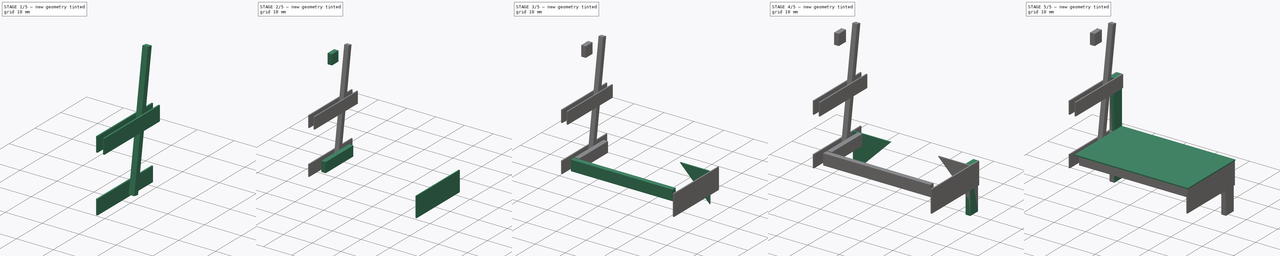
[diagram: build sequence overview — one tinted view per stage of 5, left to right]
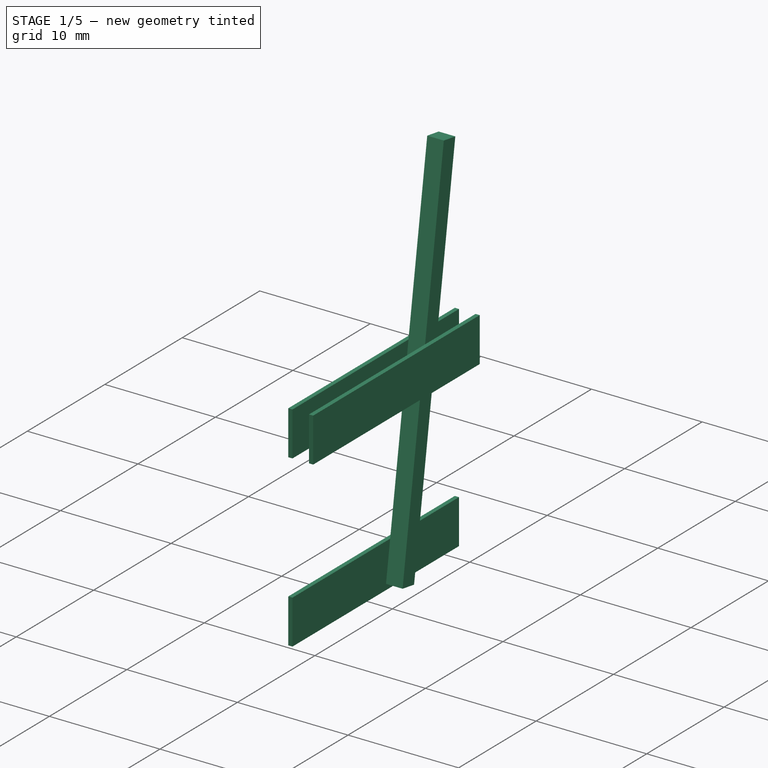
[diagram: stage 1 of 5 — iso view after this stage's code; geometry added in this stage tinted green]
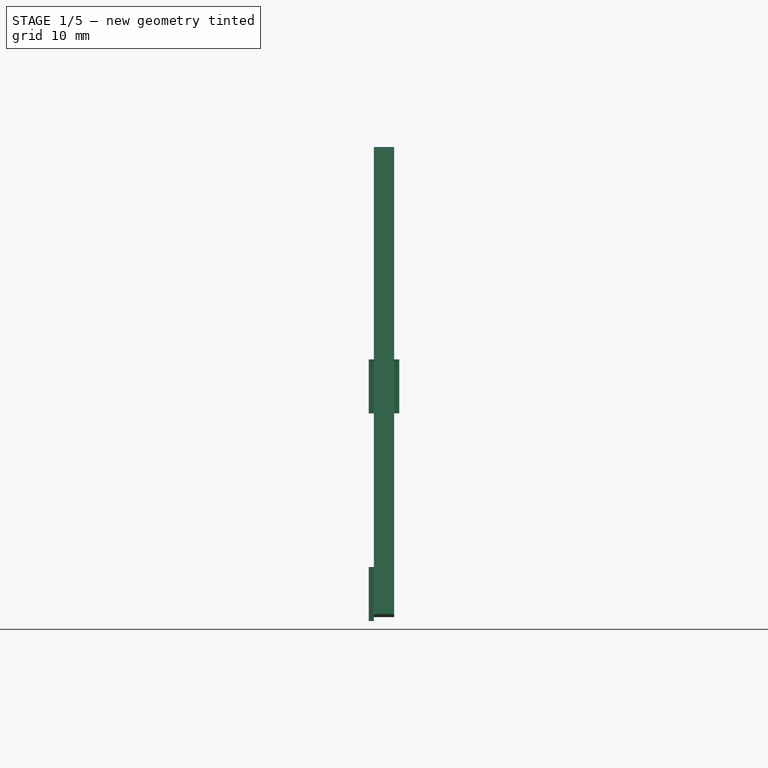
[diagram: stage 1 of 5 — front view after this stage's code; geometry added in this stage tinted green]
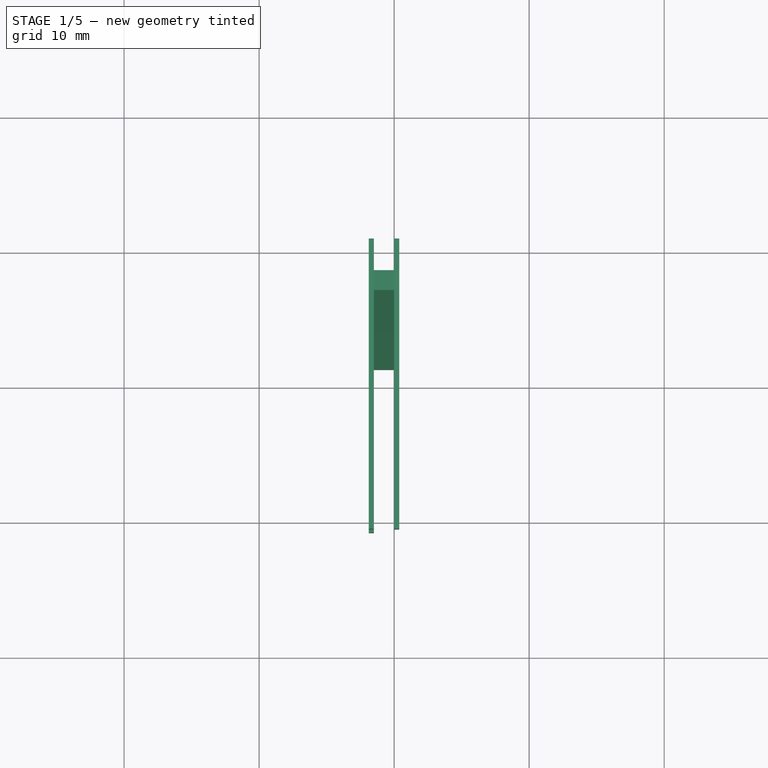
[diagram: stage 1 of 5 — top view after this stage's code; geometry added in this stage tinted green]
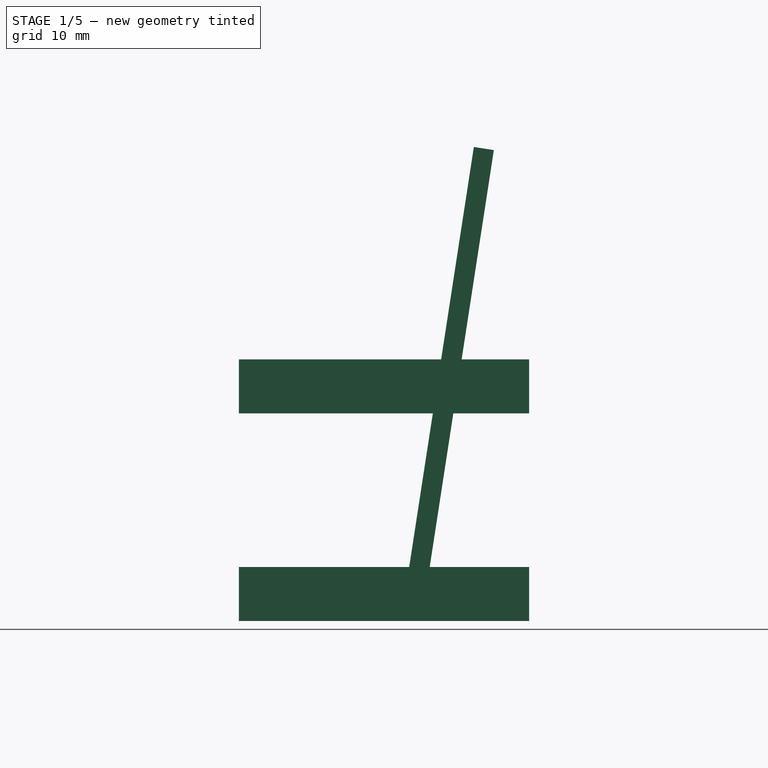
[diagram: stage 1 of 5 — right view after this stage's code; geometry added in this stage tinted green]
FCSTD DOCUMENT  (FreeCAD 0.14R3327 (Git))
Label: GoatLev
License: CC-BY 3.0
LicenseURL: http://creativecommons.org/licenses/by/3.0/
objects: Sketcher::SketchObject×15, Part::Extrusion×15, Part::Mirroring×5
note: 35 computed .brp shape members not serialized (recipe doc carries the construction recipe); baked Part::Feature solids carry a one-line shape summary decoded from their .brp

FEATURE [Sketcher::SketchObject] Sketch011
  Placement = pos=(-1.5,0,0) rot=(0.57735,0.57735,0.57735;2.0944rad)
  sketch-geometry (4):
    g0: LineSegment StartX=-10.75 StartY=14.625 StartZ=0 EndX=10.75 EndY=14.625 EndZ=0
    g1: LineSegment StartX=10.75 StartY=14.625 StartZ=0 EndX=10.75 EndY=10.625 EndZ=0
    g2: LineSegment StartX=10.75 StartY=10.625 StartZ=0 EndX=-10.75 EndY=10.625 EndZ=0
    g3: LineSegment StartX=-10.75 StartY=10.625 StartZ=0 EndX=-10.75 EndY=14.625 EndZ=0
  constraints (12):
    c: Coincident(g0,g1)
    c: Coincident(g1,g2)
    c: Coincident(g2,g3)
    c: Coincident(g3,g0)
    c: Horizontal(g0)
    c: Horizontal(g2)
    c: Vertical(g1)
    c: Vertical(g3)
    c: Symmetric(g0,g0,g-2)
    c: DistanceY(g-1,g0) = 14.625
    c: DistanceY(g3) = 4
    c: DistanceX(g0) = 21.5
FEATURE [Part::Extrusion] Extrude012
  Base = -> Sketch011
  Dir = (-0.375,0,0)
  Solid = true
FEATURE [Sketcher::SketchObject] Sketch012
  Placement = pos=(-1.5,0,0) rot=(0.57735,0.57735,0.57735;2.0944rad)
  sketch-geometry (4):
    g0: LineSegment StartX=-10.75 StartY=30 StartZ=0 EndX=10.75 EndY=30 EndZ=0
    g1: LineSegment StartX=10.75 StartY=30 StartZ=0 EndX=10.75 EndY=26 EndZ=0
    g2: LineSegment StartX=10.75 StartY=26 StartZ=0 EndX=-10.75 EndY=26 EndZ=0
    g3: LineSegment StartX=-10.75 StartY=26 StartZ=0 EndX=-10.75 EndY=30 EndZ=0
  constraints (12):
    c: Coincident(g0,g1)
    c: Coincident(g1,g2)
    c: Coincident(g2,g3)
    c: Coincident(g3,g0)
    c: Horizontal(g0)
    c: Horizontal(g2)
    c: Vertical(g1)
    c: Vertical(g3)
    c: DistanceX(g0,g0) = -21.5
    c: Symmetric(g0,g0,g-2)
    c: DistanceY(g-1,g0) = 30
    c: Distance(g1) = 4
FEATURE [Part::Extrusion] Extrude013
  Base = -> Sketch012
  Dir = (-0.375,0,0)
  Solid = true
FEATURE [Sketcher::SketchObject] Sketch013
  Placement = pos=(0,0,0) rot=(0.57735,0.57735,0.57735;2.0944rad)
  sketch-geometry (4):
    g0: LineSegment StartX=-10.75 StartY=30 StartZ=0 EndX=10.75 EndY=30 EndZ=0
    g1: LineSegment StartX=10.75 StartY=30 StartZ=0 EndX=10.75 EndY=26 EndZ=0
    g2: LineSegment StartX=10.75 StartY=26 StartZ=0 EndX=-10.75 EndY=26 EndZ=0
    g3: LineSegment StartX=-10.75 StartY=26 StartZ=0 EndX=-10.75 EndY=30 EndZ=0
  constraints (12):
    c: Coincident(g0,g1)
    c: Coincident(g1,g2)
    c: Coincident(g2,g3)
    c: Coincident(g3,g0)
    c: Horizontal(g0)
    c: Horizontal(g2)
    c: Vertical(g1)
    c: Vertical(g3)
    c: Symmetric(g0,g0,g-2)
    c: DistanceY(g-1,g0) = 30
    c: DistanceX(g0) = 21.5
    c: DistanceY(g1) = -4
FEATURE [Part::Extrusion] Extrude014
  Base = -> Sketch013
  Dir = (0.375,0,0)
  Solid = true
FEATURE [Sketcher::SketchObject] Sketch014
  Placement = pos=(0,0,0) rot=(0.57735,-0.57735,-0.57735;2.0944rad)
  sketch-geometry (8):
    g0: LineSegment StartX=-2.81207 StartY=10.9092 StartZ=0 EndX=-1.32952 EndY=11.1373 EndZ=0
    g1: LineSegment StartX=-1.32952 StartY=11.1373 StartZ=0 EndX=-6.65309 EndY=45.7301 EndZ=0
    g2: LineSegment StartX=-6.65309 StartY=45.7301 StartZ=0 EndX=-8.13563 EndY=45.502 EndZ=0
    g3: LineSegment StartX=-8.13563 StartY=45.502 StartZ=0 EndX=-2.81207 EndY=10.9092 EndZ=0
    g4: GeomPoint [constr] X=-2.375 Y=13 Z=0
    g5: LineSegment [constr] StartX=-2.375 StartY=13 StartZ=0 EndX=-2.81207 EndY=10.9092 EndZ=0
    g6: LineSegment [constr] StartX=-2.375 StartY=13 StartZ=0 EndX=-1.32952 EndY=11.1373 EndZ=0
    g7: GeomPoint [constr] X=-5.75 Y=30 Z=0
  constraints (20):
    c: Coincident(g0,g1)
    c: Coincident(g1,g2)
    c: Coincident(g2,g3)
    c: Coincident(g3,g0)
    c: Perpendicular(g1,g2)
    c: Perpendicular(g3,g2)
    c: Perpendicular(g3,g0)
    c: Coincident(g5,g4)
    c: Coincident(g5,g0)
    c: Coincident(g6,g4)
    c: Coincident(g6,g0)
    c: Equal(g5,g6)
    c: Distance(g4,g0) = 2
    c: DistanceX(g-1,g4) = -2.375
    c: DistanceY(g-1,g4) = 13
    c: Distance(g3) = 35
    c: Distance(g2) = 1.5
    c: PointOnObject(g7,g3)
    c: DistanceX(g-1,g7) = -5.75
    c: DistanceY(g-1,g7) = 30
FEATURE [Part::Extrusion] Extrude015
  Base = -> Sketch014
  Dir = (-1.5,0,0)
  Solid = true
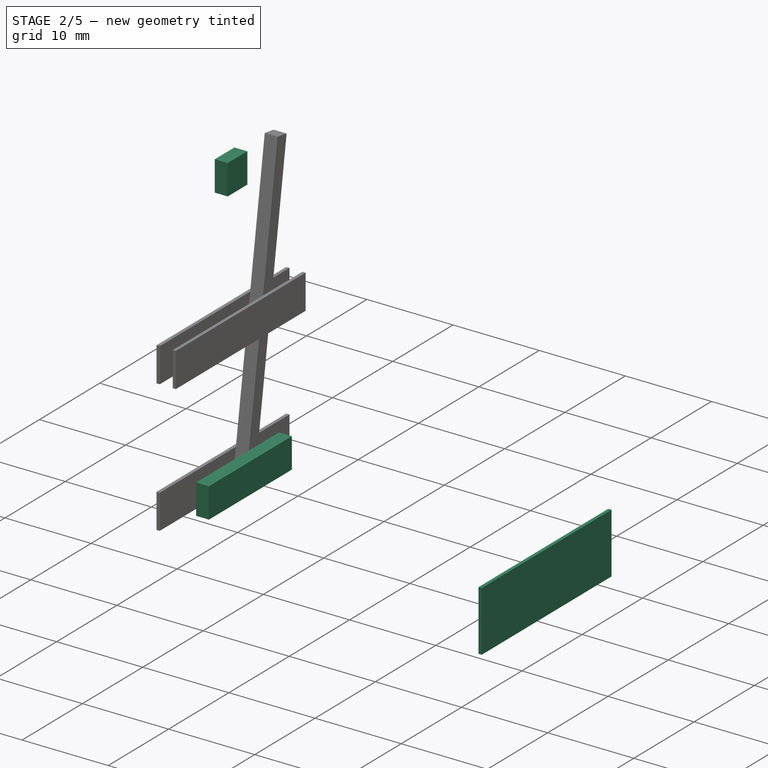
[diagram: stage 2 of 5 — iso view after this stage's code; geometry added in this stage tinted green]
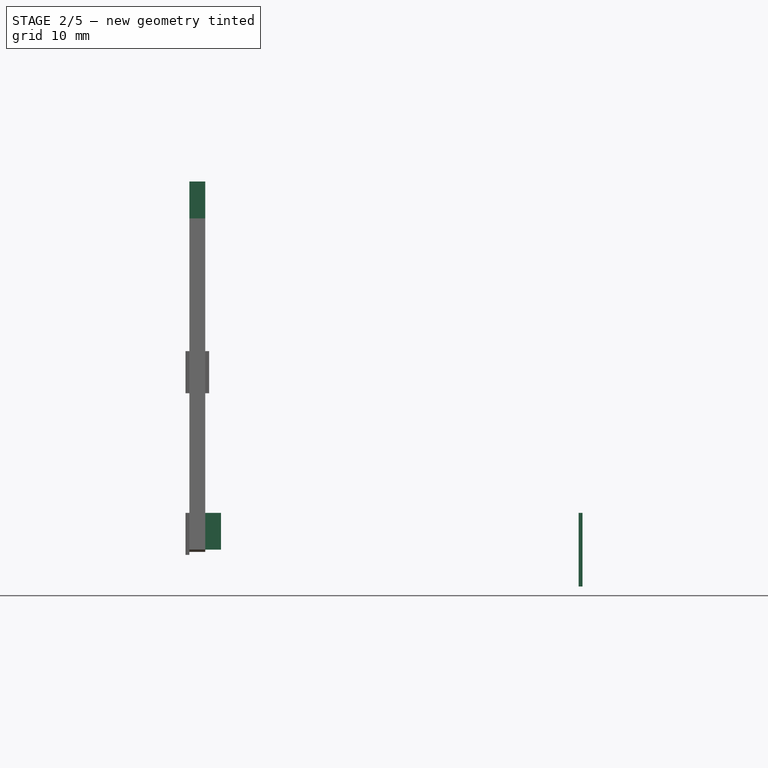
[diagram: stage 2 of 5 — front view after this stage's code; geometry added in this stage tinted green]
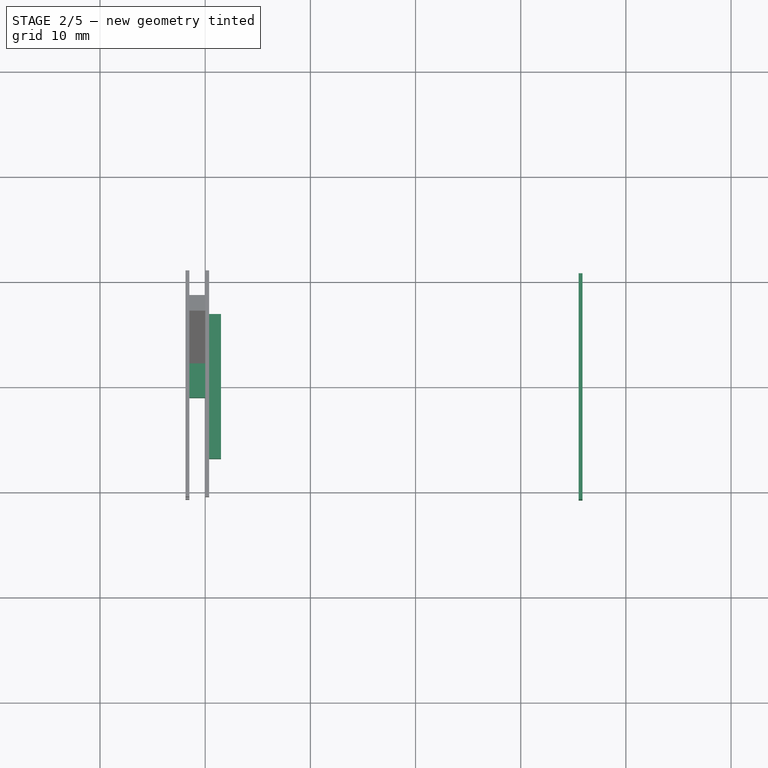
[diagram: stage 2 of 5 — top view after this stage's code; geometry added in this stage tinted green]
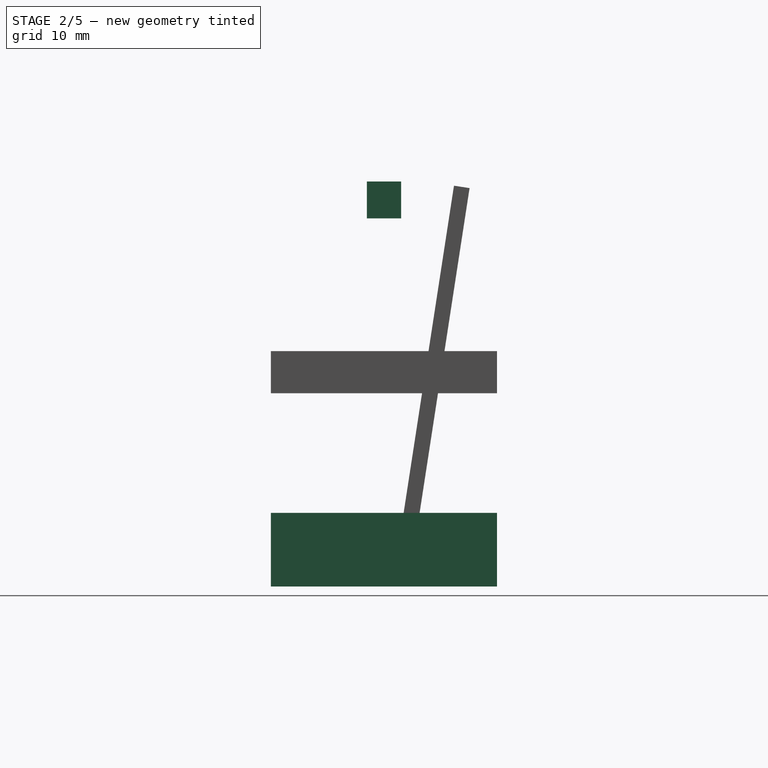
[diagram: stage 2 of 5 — right view after this stage's code; geometry added in this stage tinted green]
FEATURE [Sketcher::SketchObject] Sketch007
  Placement = pos=(0,0,0) rot=(0.57735,0.57735,0.57735;2.0944rad)
  sketch-geometry (4):
    g0: LineSegment StartX=-6.875 StartY=14.625 StartZ=0 EndX=6.875 EndY=14.625 EndZ=0
    g1: LineSegment StartX=6.875 StartY=14.625 StartZ=0 EndX=6.875 EndY=11.125 EndZ=0
    g2: LineSegment StartX=6.875 StartY=11.125 StartZ=0 EndX=-6.875 EndY=11.125 EndZ=0
    g3: LineSegment StartX=-6.875 StartY=11.125 StartZ=0 EndX=-6.875 EndY=14.625 EndZ=0
  constraints (12):
    c: Coincident(g0,g1)
    c: Coincident(g1,g2)
    c: Coincident(g2,g3)
    c: Coincident(g3,g0)
    c: Horizontal(g0)
    c: Horizontal(g2)
    c: Vertical(g1)
    c: Vertical(g3)
    c: Symmetric(g2,g1,g-2)
    c: DistanceY(g-1,g0) = 14.625
    c: DistanceY(g3) = 3.5
    c: DistanceX(g2) = -13.75
FEATURE [Part::Extrusion] Extrude008
  Base = -> Sketch007
  Dir = (1.5,0,0)
  Solid = true
FEATURE [Sketcher::SketchObject] Sketch008
  Placement = pos=(35.5,0,0) rot=(0.57735,0.57735,0.57735;2.0944rad)
  sketch-geometry (4):
    g0: LineSegment StartX=-10.75 StartY=14.625 StartZ=0 EndX=10.75 EndY=14.625 EndZ=0
    g1: LineSegment StartX=10.75 StartY=14.625 StartZ=0 EndX=10.75 EndY=7.625 EndZ=0
    g2: LineSegment StartX=10.75 StartY=7.625 StartZ=0 EndX=-10.75 EndY=7.625 EndZ=0
    g3: LineSegment StartX=-10.75 StartY=7.625 StartZ=0 EndX=-10.75 EndY=14.625 EndZ=0
  constraints (12):
    c: Coincident(g0,g1)
    c: Coincident(g1,g2)
    c: Coincident(g2,g3)
    c: Coincident(g3,g0)
    c: Horizontal(g0)
    c: Horizontal(g2)
    c: Vertical(g1)
    c: Vertical(g3)
    c: Symmetric(g1,g2,g-2)
    c: DistanceX(g0) = 21.5
    c: DistanceY(g3) = 7
    c: DistanceY(g-1,g0) = 14.625
FEATURE [Part::Extrusion] Extrude009
  Base = -> Sketch008
  Dir = (0.375,0,0)
  Solid = true
FEATURE [Sketcher::SketchObject] Sketch009
  Placement = pos=(0,0,0) rot=(0.57735,0.57735,0.57735;2.0944rad)
  sketch-geometry (4):
    g0: LineSegment StartX=-1.625 StartY=46.125 StartZ=0 EndX=-3.125 EndY=46.125 EndZ=0
    g1: LineSegment StartX=-3.125 StartY=46.125 StartZ=0 EndX=-3.125 EndY=11.125 EndZ=0
    g2: LineSegment StartX=-3.125 StartY=11.125 StartZ=0 EndX=-1.625 EndY=11.125 EndZ=0
    g3: LineSegment StartX=-1.625 StartY=11.125 StartZ=0 EndX=-1.625 EndY=46.125 EndZ=0
  constraints (12):
    c: Coincident(g0,g1)
    c: Coincident(g1,g2)
    c: Coincident(g2,g3)
    c: Coincident(g3,g0)
    c: Horizontal(g0)
    c: Horizontal(g2)
    c: Vertical(g1)
    c: Vertical(g3)
    c: DistanceX(g0) = -1.5
    c: DistanceY(g3) = 35
    c: DistanceY(g-1,g1) = 11.125
    c: DistanceX(g-1,g2) = -1.625
FEATURE [Part::Extrusion] Extrude010
  Base = -> Sketch009
  Dir = (-1.5,0,0)
  Solid = true
FEATURE [Sketcher::SketchObject] Sketch010
  ExternalGeometry = -> [Extrude010]
  Placement = pos=(0,-1.625,0) rot=(0,0.707107,0.707107;3.14159rad)
  Support = -> Extrude010 [Face4]
  sketch-geometry (4):
    g0: LineSegment StartX=1.5 StartY=46.125 StartZ=0 EndX=0 EndY=46.125 EndZ=0
    g1: LineSegment StartX=0 StartY=46.125 StartZ=0 EndX=0 EndY=42.625 EndZ=0
    g2: LineSegment StartX=0 StartY=42.625 StartZ=0 EndX=1.5 EndY=42.625 EndZ=0
    g3: LineSegment StartX=1.5 StartY=42.625 StartZ=0 EndX=1.5 EndY=46.125 EndZ=0
  constraints (11):
    c: Coincident(g0,g1)
    c: Coincident(g1,g2)
    c: Coincident(g2,g3)
    c: Coincident(g3,g0)
    c: Horizontal(g0)
    c: Horizontal(g2)
    c: Vertical(g1)
    c: Vertical(g3)
    c: Coincident(g0,g-3)
    c: Coincident(g0,g-3)
    c: DistanceY(g1) = -3.5
FEATURE [Part::Extrusion] Extrude011
  Base = -> Sketch010
  Dir = (0,3.25,0)
  Solid = true
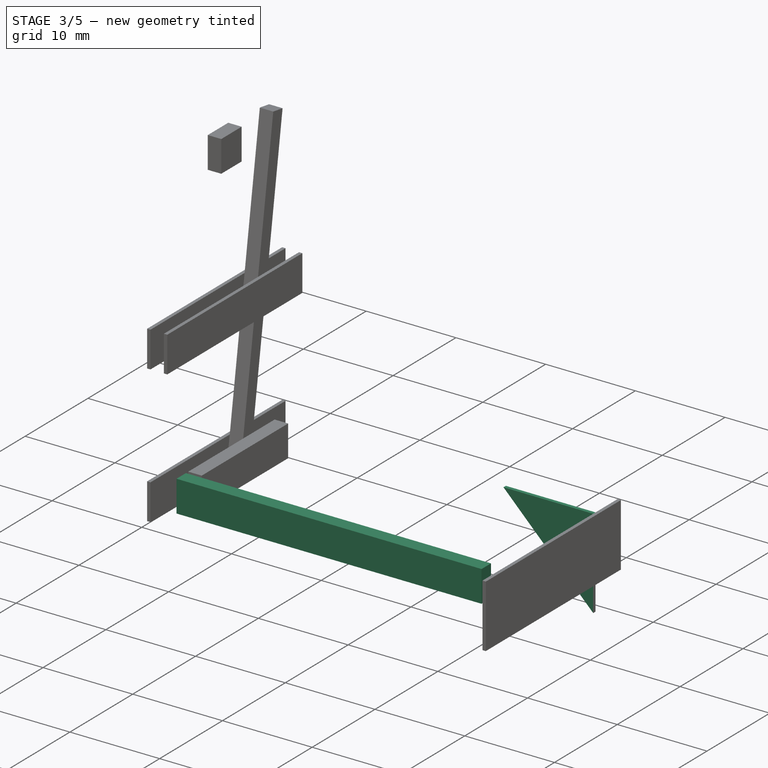
[diagram: stage 3 of 5 — iso view after this stage's code; geometry added in this stage tinted green]
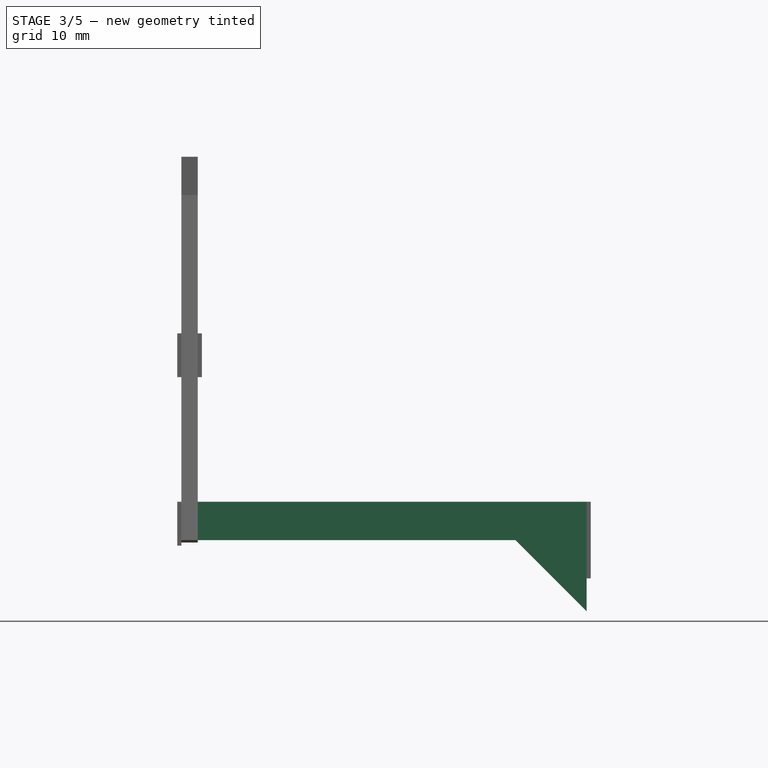
[diagram: stage 3 of 5 — front view after this stage's code; geometry added in this stage tinted green]
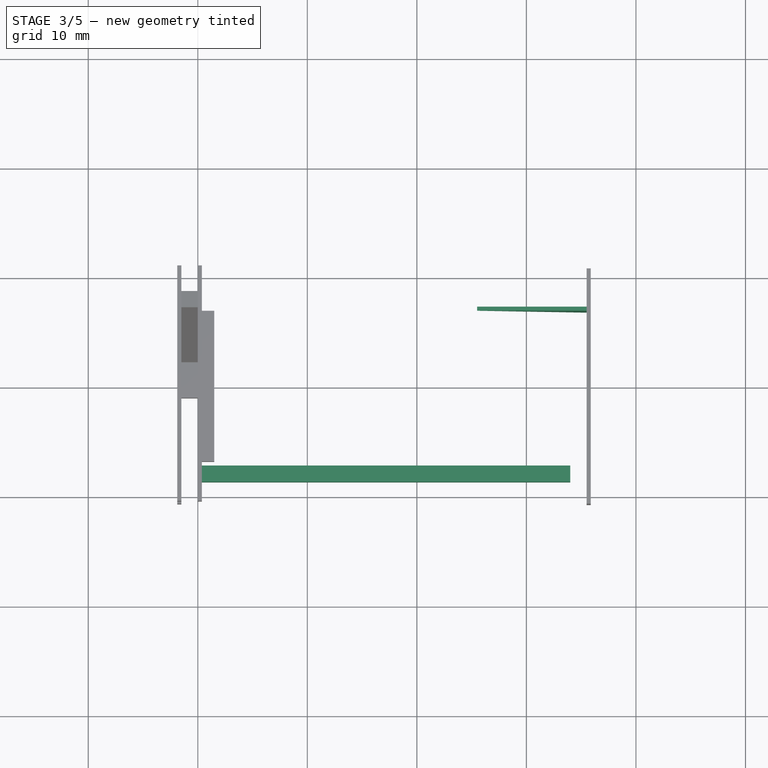
[diagram: stage 3 of 5 — top view after this stage's code; geometry added in this stage tinted green]
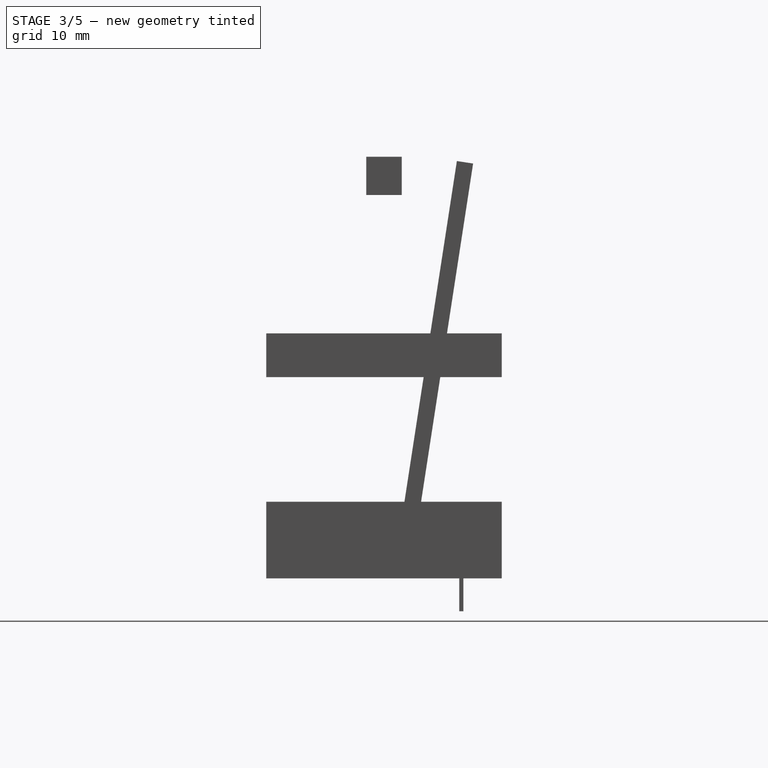
[diagram: stage 3 of 5 — right view after this stage's code; geometry added in this stage tinted green]
FEATURE [Sketcher::SketchObject] Sketch001
  Placement = pos=(0,0,0) rot=(0.57735,0.57735,0.57735;2.0944rad)
  sketch-geometry (4):
    g0: LineSegment StartX=-8.75 StartY=14.625 StartZ=0 EndX=-7.25 EndY=14.625 EndZ=0
    g1: LineSegment StartX=-7.25 StartY=14.625 StartZ=0 EndX=-7.25 EndY=11.125 EndZ=0
    g2: LineSegment StartX=-7.25 StartY=11.125 StartZ=0 EndX=-8.75 EndY=11.125 EndZ=0
    g3: LineSegment StartX=-8.75 StartY=11.125 StartZ=0 EndX=-8.75 EndY=14.625 EndZ=0
  constraints (12):
    c: Coincident(g0,g1)
    c: Coincident(g1,g2)
    c: Coincident(g2,g3)
    c: Coincident(g3,g0)
    c: Horizontal(g0)
    c: Horizontal(g2)
    c: Vertical(g1)
    c: Vertical(g3)
    c: DistanceX(g-1,g1) = -7.25
    c: DistanceX(g2) = -1.5
    c: DistanceY(g3) = 3.5
    c: DistanceY(g-1,g0) = 14.625
FEATURE [Part::Extrusion] Extrude
  Base = -> Sketch001
  Dir = (34,0,0)
  Solid = true
FEATURE [Sketcher::SketchObject] Sketch006
  Placement = pos=(0,-7.25,0) rot=(0,0.707107,0.707107;3.14159rad)
  Support = -> Extrude [Face2]
  sketch-geometry (3):
    g0: LineSegment StartX=-25.5 StartY=14.625 StartZ=0 EndX=-35.5 EndY=14.625 EndZ=0
    g1: LineSegment StartX=-35.5 StartY=14.625 StartZ=0 EndX=-35.5 EndY=4.625 EndZ=0
    g2: LineSegment StartX=-35.5 StartY=4.625 StartZ=0 EndX=-25.5 EndY=14.625 EndZ=0
  constraints (9):
    c: Coincident(g0,g1)
    c: Vertical(g1)
    c: Coincident(g1,g2)
    c: Coincident(g2,g0)
    c: Horizontal(g0)
    c: Angle(g2,g1) = 0.785398
    c: DistanceY(g-1,g0) = 14.625
    c: DistanceY(g1) = -10
    c: DistanceX(g-1,g0) = -35.5
FEATURE [Part::Extrusion] Extrude006
  Base = -> Sketch001
  Dir = (34,0,0)
  Solid = true
FEATURE [Sketcher::SketchObject] Sketch005
  Placement = pos=(0,-7.25,0) rot=(0,0.707107,0.707107;3.14159rad)
  Support = -> Extrude006 [Face2]
  sketch-geometry (3):
    g0: LineSegment StartX=-10.5 StartY=14.625 StartZ=0 EndX=1.5 EndY=2.625 EndZ=0
    g1: LineSegment StartX=1.5 StartY=2.625 StartZ=0 EndX=1.5 EndY=14.625 EndZ=0
    g2: LineSegment StartX=1.5 StartY=14.625 StartZ=0 EndX=-10.5 EndY=14.625 EndZ=0
  constraints (9):
    c: Coincident(g0,g1)
    c: Vertical(g1)
    c: Coincident(g1,g2)
    c: Coincident(g2,g0)
    c: Horizontal(g2)
    c: DistanceY(g-1,g1) = 14.625
    c: DistanceX(g-1,g1) = 1.5
    c: DistanceY(g1) = 12
    c: Angle(g0,g1) = -0.785398
FEATURE [Part::Extrusion] Extrude007
  Base = -> Sketch006
  Dir = (0,0.375,0)
  Solid = true
FEATURE [Part::Mirroring] Part__Mirroring004  label="Extrude007 (Mirror #5)"
  Base = (0,0,0)
  Normal = (0,1,0)
  Source = -> Extrude007
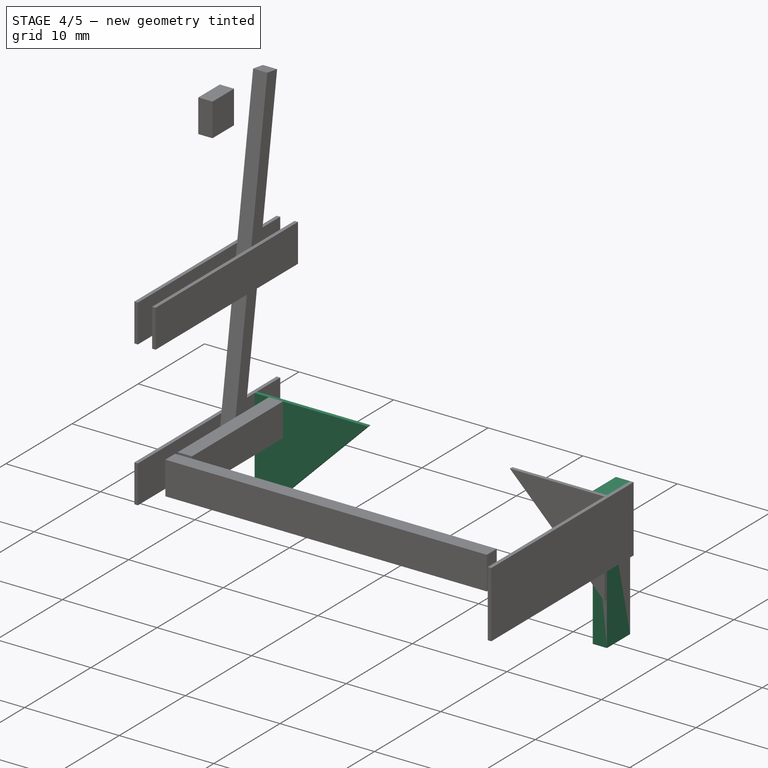
[diagram: stage 4 of 5 — iso view after this stage's code; geometry added in this stage tinted green]
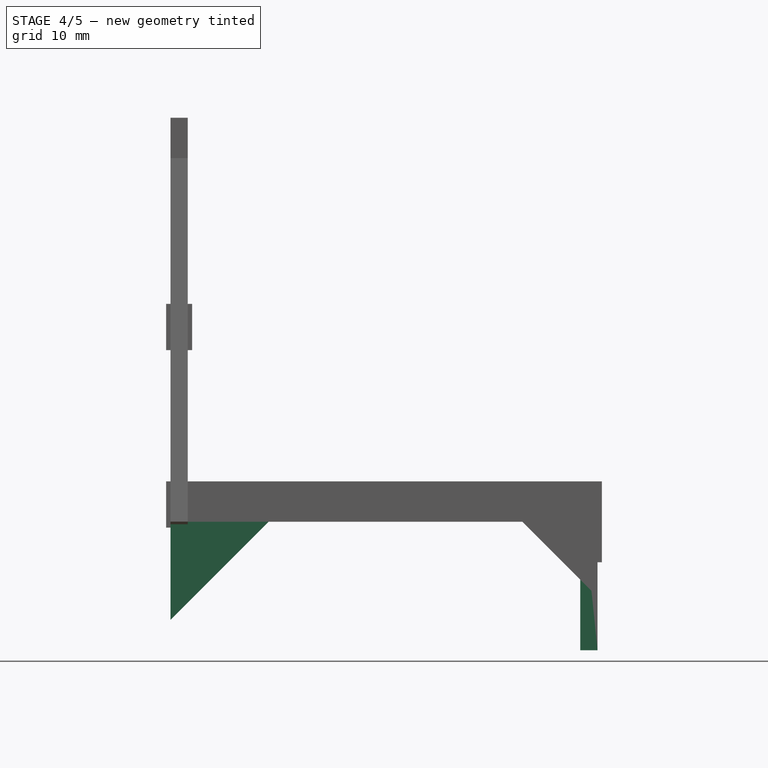
[diagram: stage 4 of 5 — front view after this stage's code; geometry added in this stage tinted green]
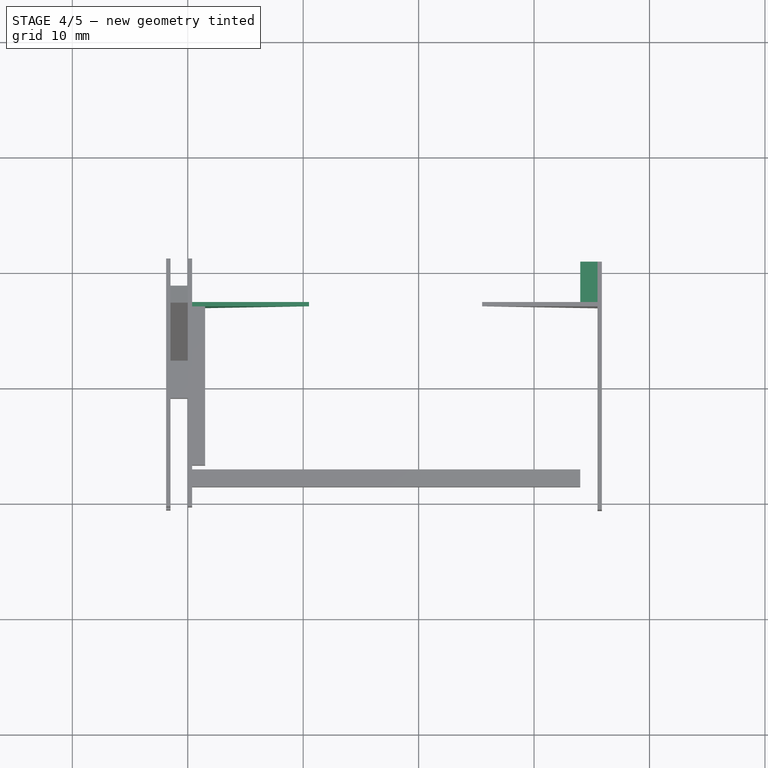
[diagram: stage 4 of 5 — top view after this stage's code; geometry added in this stage tinted green]
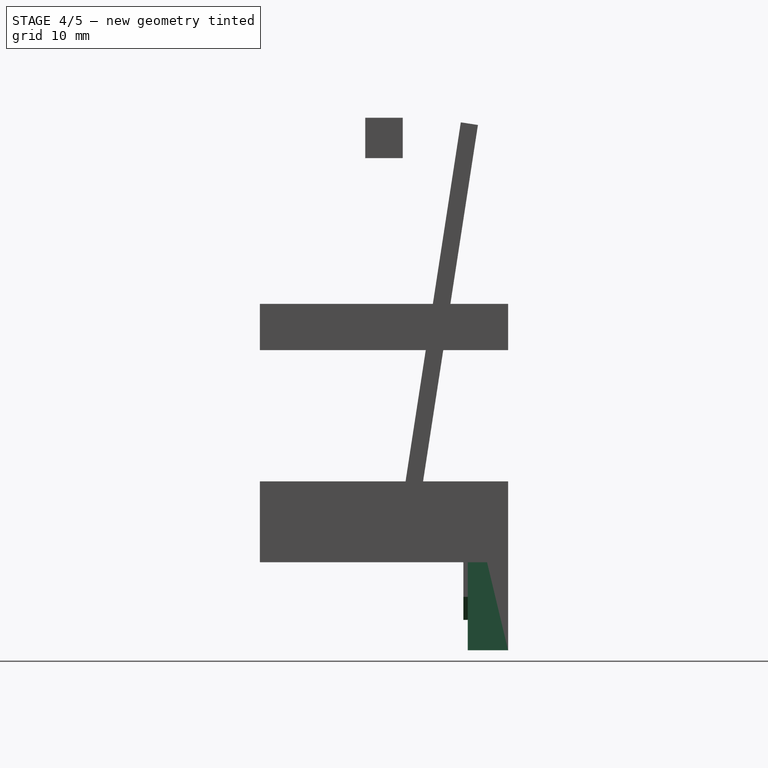
[diagram: stage 4 of 5 — right view after this stage's code; geometry added in this stage tinted green]
FEATURE [Sketcher::SketchObject] Sketch003
  sketch-geometry (4):
    g0: LineSegment StartX=35.5 StartY=-10.75 StartZ=0 EndX=34 EndY=-10.75 EndZ=0
    g1: LineSegment StartX=34 StartY=-10.75 StartZ=0 EndX=34 EndY=-7.25 EndZ=0
    g2: LineSegment StartX=34 StartY=-7.25 StartZ=0 EndX=35.5 EndY=-7.25 EndZ=0
    g3: LineSegment StartX=35.5 StartY=-7.25 StartZ=0 EndX=35.5 EndY=-10.75 EndZ=0
  constraints (12):
    c: Coincident(g0,g1)
    c: Coincident(g1,g2)
    c: Coincident(g2,g3)
    c: Coincident(g3,g0)
    c: Horizontal(g0)
    c: Horizontal(g2)
    c: Vertical(g1)
    c: Vertical(g3)
    c: DistanceY(g-1,g0) = -10.75
    c: DistanceX(g-1,g0) = 35.5
    c: DistanceX(g2) = 1.5
    c: DistanceY(g1) = 3.5
FEATURE [Part::Extrusion] Extrude004
  Base = -> Sketch003
  Dir = (0,0,14.625)
  Solid = true
FEATURE [Part::Mirroring] Part__Mirroring002  label="Extrude004 (Mirror #3)"
  Base = (0,0,0)
  Normal = (0,1,0)
  Source = -> Extrude004
FEATURE [Sketcher::SketchObject] Sketch004
  Placement = pos=(0,-7.25,0) rot=(0,0.707107,0.707107;3.14159rad)
  Support = -> Extrude [Face2]
  sketch-geometry (3):
    g0: LineSegment StartX=-10.5 StartY=14.625 StartZ=0 EndX=1.5 EndY=2.625 EndZ=0
    g1: LineSegment StartX=1.5 StartY=2.625 StartZ=0 EndX=1.5 EndY=14.625 EndZ=0
    g2: LineSegment StartX=1.5 StartY=14.625 StartZ=0 EndX=-10.5 EndY=14.625 EndZ=0
  constraints (9):
    c: Coincident(g0,g1)
    c: Vertical(g1)
    c: Coincident(g1,g2)
    c: Coincident(g2,g0)
    c: Horizontal(g2)
    c: DistanceY(g-1,g1) = 14.625
    c: DistanceX(g-1,g1) = 1.5
    c: DistanceY(g1) = 12
    c: Angle(g0,g1) = -0.785398
FEATURE [Part::Extrusion] Extrude005
  Base = -> Sketch004
  Dir = (0,0.375,0)
  Solid = true
FEATURE [Part::Mirroring] Part__Mirroring003  label="Extrude005 (Mirror #4)"
  Base = (0,0,0)
  Normal = (0,1,0)
  Source = -> Extrude005
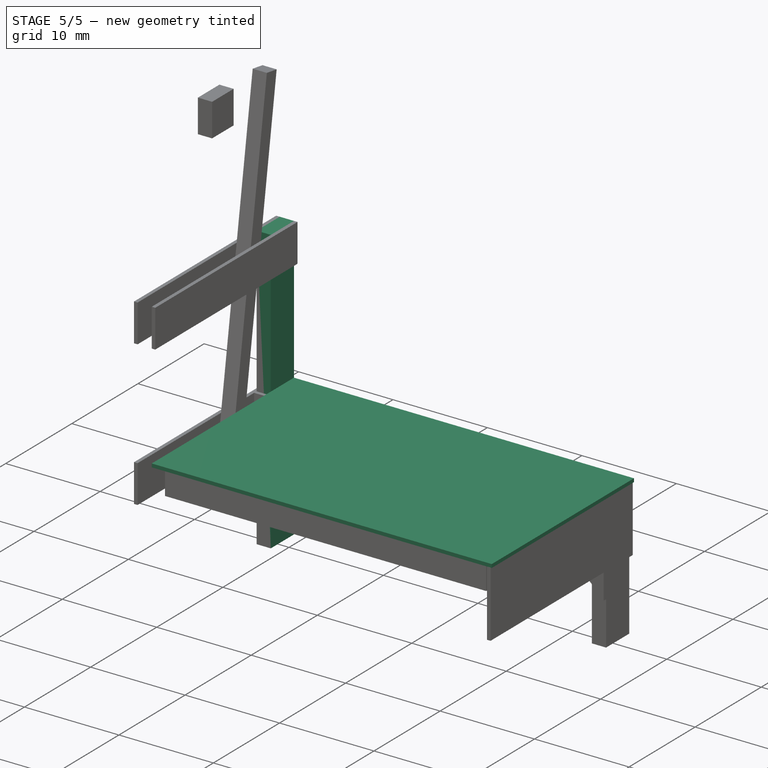
[diagram: stage 5 of 5 — iso view after this stage's code; geometry added in this stage tinted green]
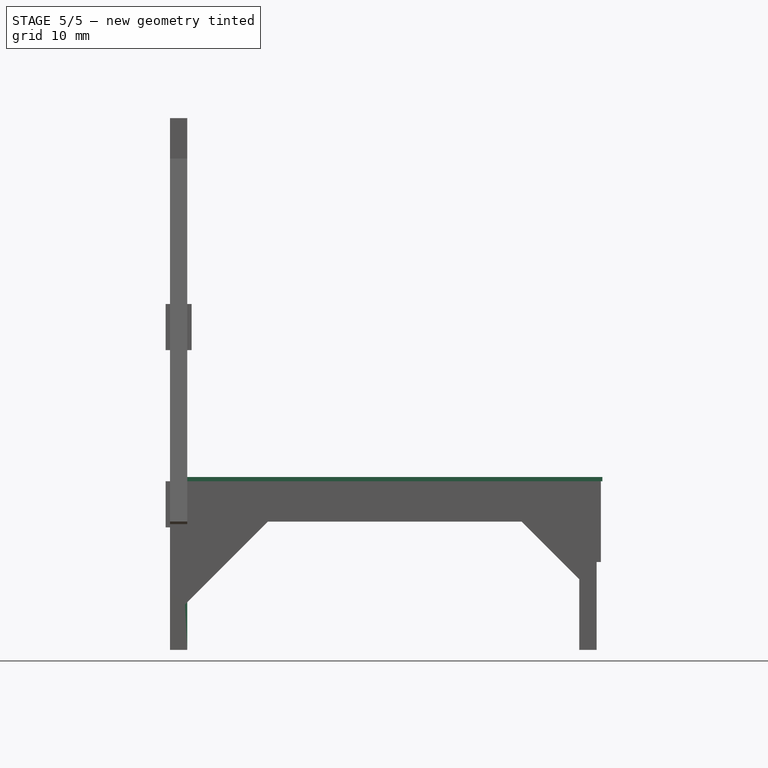
[diagram: stage 5 of 5 — front view after this stage's code; geometry added in this stage tinted green]
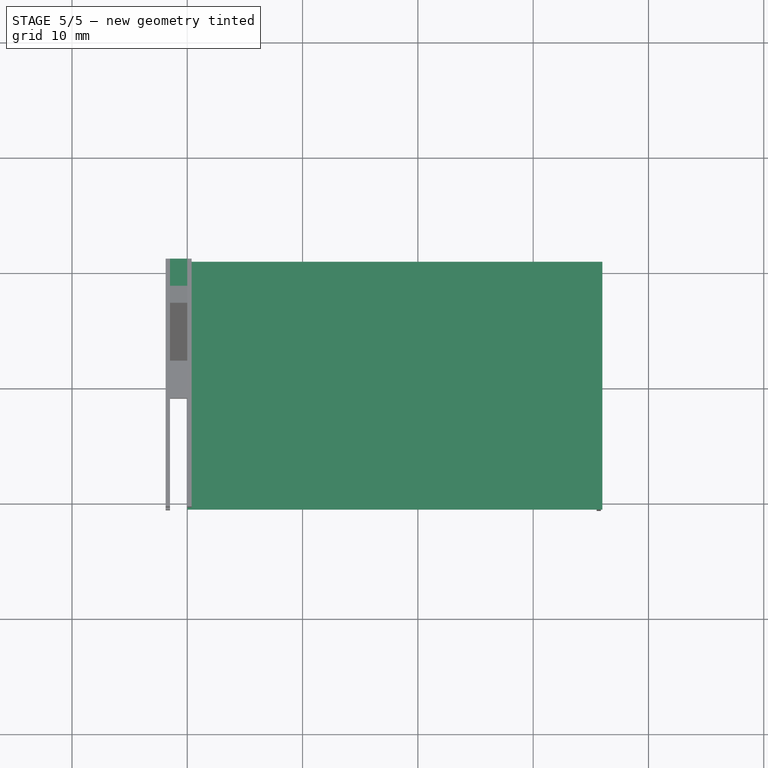
[diagram: stage 5 of 5 — top view after this stage's code; geometry added in this stage tinted green]
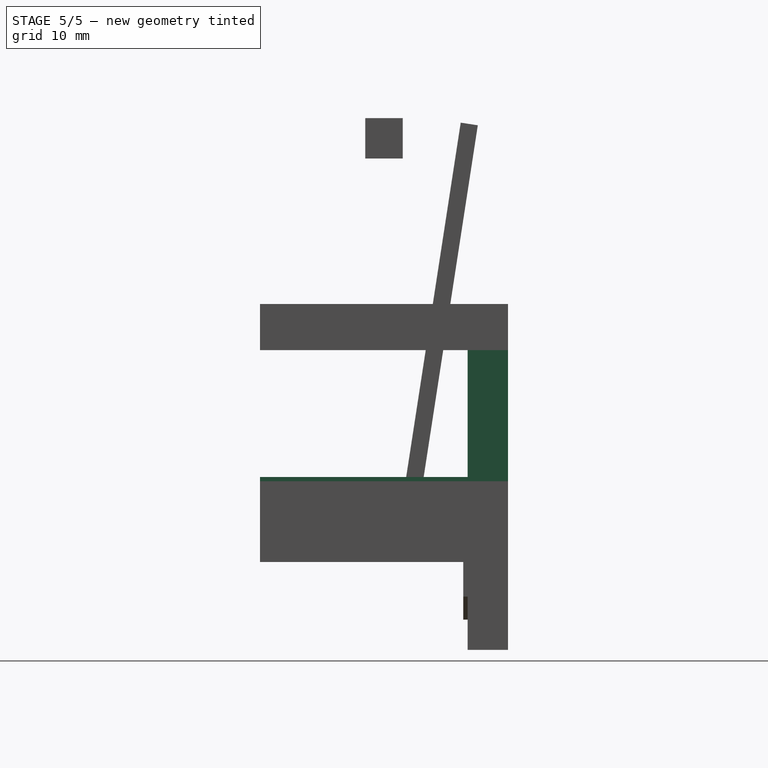
[diagram: stage 5 of 5 — right view after this stage's code; geometry added in this stage tinted green]
FEATURE [Sketcher::SketchObject] Sketch
  Placement = pos=(0,0,15) rot=(0,0,1;0rad)
  sketch-geometry (4):
    g0: LineSegment StartX=0 StartY=10.75 StartZ=0 EndX=36 EndY=10.75 EndZ=0
    g1: LineSegment StartX=36 StartY=10.75 StartZ=0 EndX=36 EndY=-10.75 EndZ=0
    g2: LineSegment StartX=36 StartY=-10.75 StartZ=0 EndX=0 EndY=-10.75 EndZ=0
    g3: LineSegment StartX=0 StartY=-10.75 StartZ=0 EndX=0 EndY=10.75 EndZ=0
  constraints (12):
    c: Coincident(g0,g1)
    c: Coincident(g1,g2)
    c: Coincident(g2,g3)
    c: Coincident(g3,g0)
    c: Horizontal(g0)
    c: Horizontal(g2)
    c: Vertical(g1)
    c: Vertical(g3)
    c: PointOnObject(g0,g-2)
    c: DistanceX(g0,g0) = 36
    c: DistanceY(g0,g2) = -21.5
    c: Symmetric(g0,g2,g-1)
FEATURE [Part::Extrusion] Extrude002
  Base = -> Sketch
  Dir = (0,0,-0.37)
  Solid = true
FEATURE [Part::Mirroring] Part__Mirroring  label="Extrude (Mirror #1)"
  Base = (0,0,0)
  Normal = (0,1,0)
  Source = -> Extrude
FEATURE [Sketcher::SketchObject] Sketch002
  sketch-geometry (4):
    g0: LineSegment StartX=0 StartY=-10.75 StartZ=0 EndX=-1.5 EndY=-10.75 EndZ=0
    g1: LineSegment StartX=-1.5 StartY=-10.75 StartZ=0 EndX=-1.5 EndY=-7.25 EndZ=0
    g2: LineSegment StartX=-1.5 StartY=-7.25 StartZ=0 EndX=0 EndY=-7.25 EndZ=0
    g3: LineSegment StartX=0 StartY=-7.25 StartZ=0 EndX=0 EndY=-10.75 EndZ=0
  constraints (12):
    c: Coincident(g0,g1)
    c: Coincident(g1,g2)
    c: Coincident(g2,g3)
    c: Coincident(g3,g0)
    c: Horizontal(g0)
    c: Horizontal(g2)
    c: Vertical(g1)
    c: Vertical(g3)
    c: PointOnObject(g0,g-2)
    c: DistanceY(g1) = 3.5
    c: DistanceX(g2) = 1.5
    c: DistanceY(g-1,g0) = -10.75
FEATURE [Part::Extrusion] Extrude003
  Base = -> Sketch002
  Dir = (0,0,30)
  Solid = true
FEATURE [Part::Mirroring] Part__Mirroring001  label="Extrude003 (Mirror #2)"
  Base = (0,0,0)
  Normal = (0,1,0)
  Source = -> Extrude003
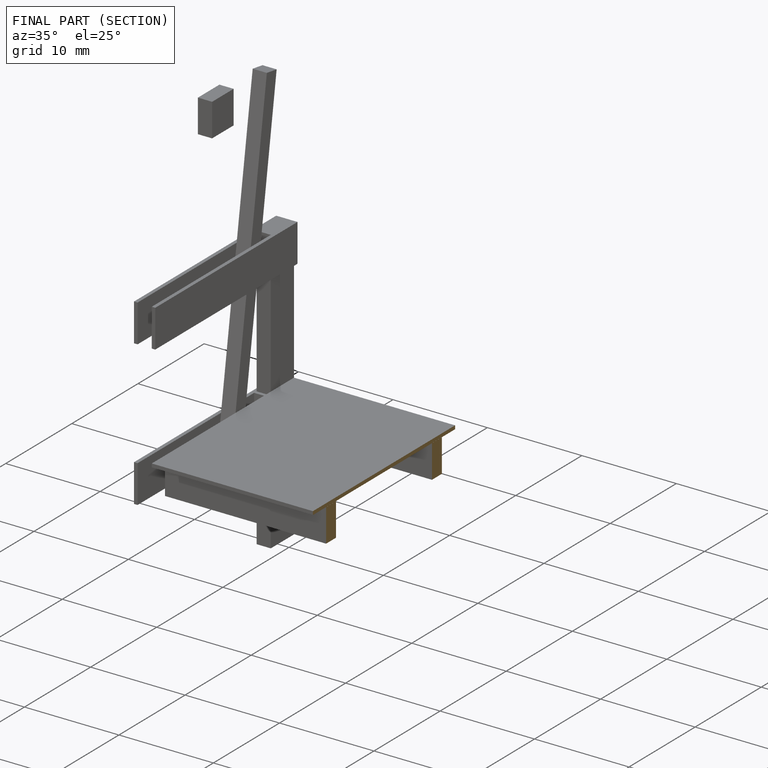
[diagram: finished part — half-section view (interior)]
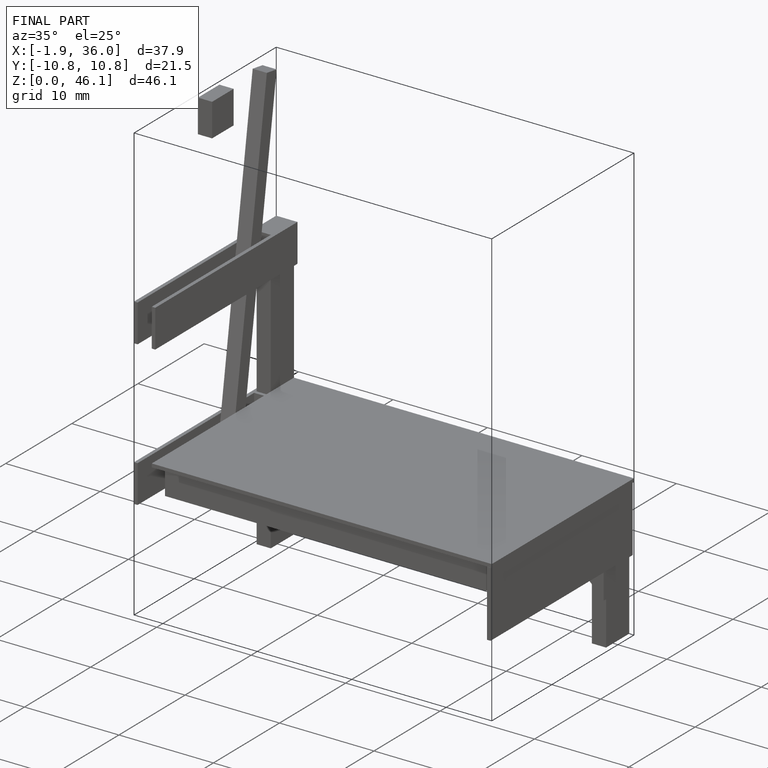
[diagram: finished part — iso view with bounding-box wireframe]
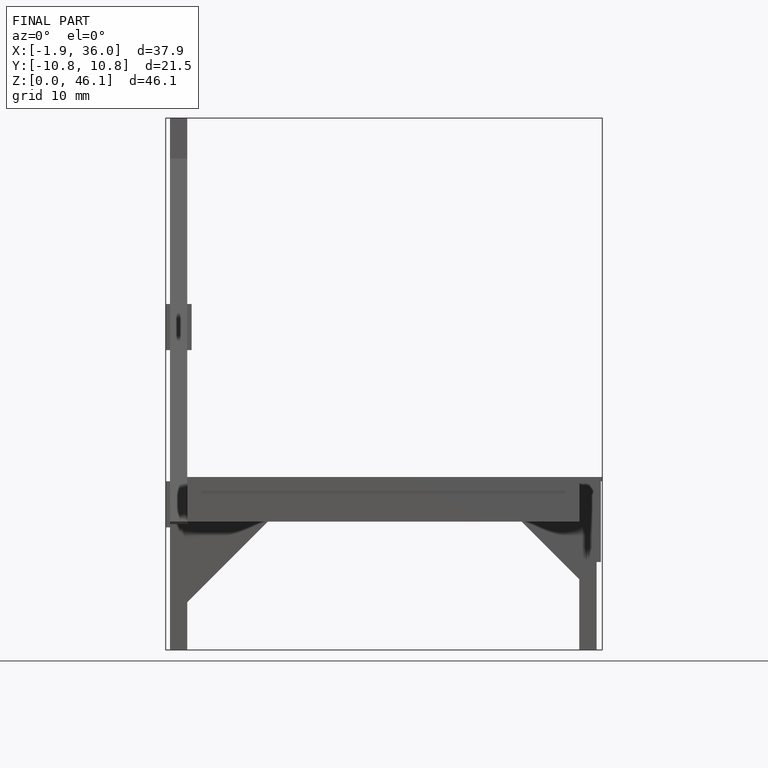
[diagram: finished part — front view with bounding-box wireframe]
